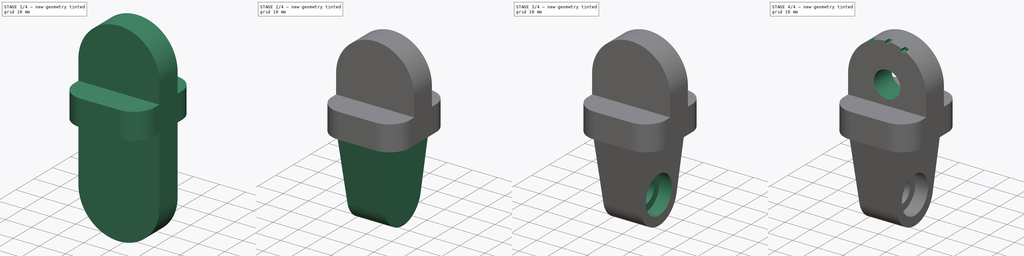
[diagram: build sequence overview — one tinted view per stage of 4, left to right]
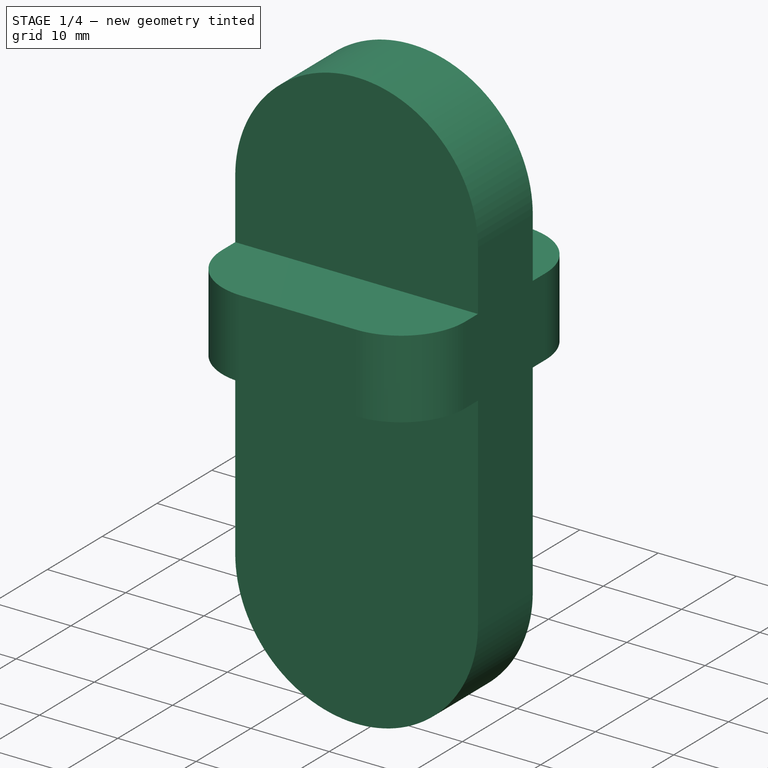
[diagram: stage 1 of 4 — iso view after this stage's code; geometry added in this stage tinted green]
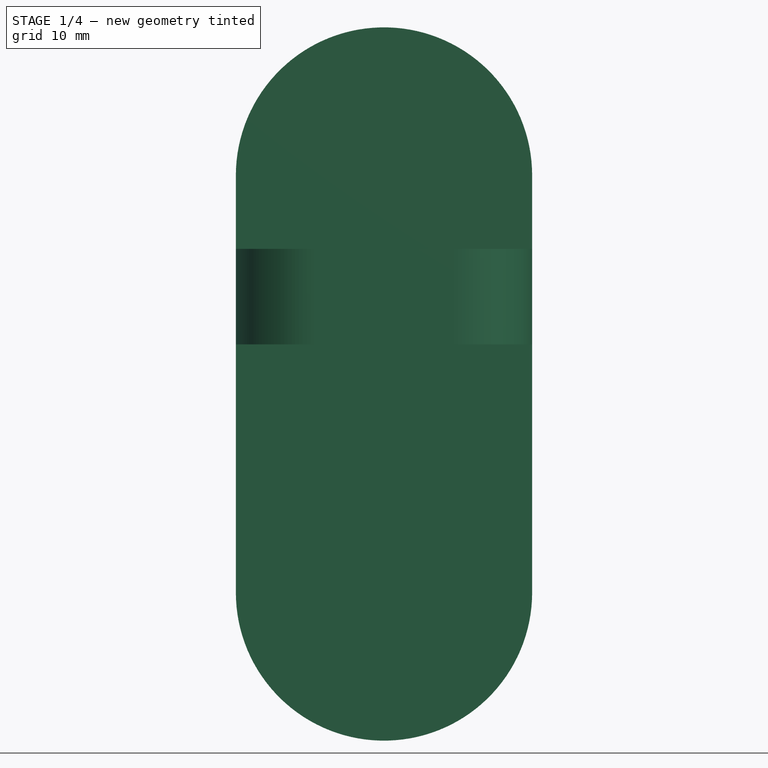
[diagram: stage 1 of 4 — front view after this stage's code; geometry added in this stage tinted green]
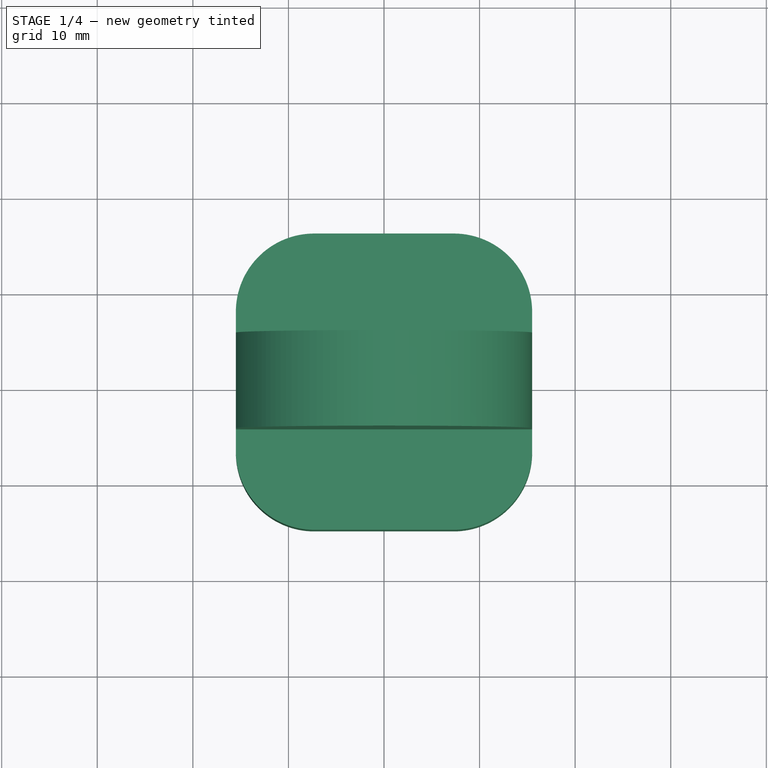
[diagram: stage 1 of 4 — top view after this stage's code; geometry added in this stage tinted green]
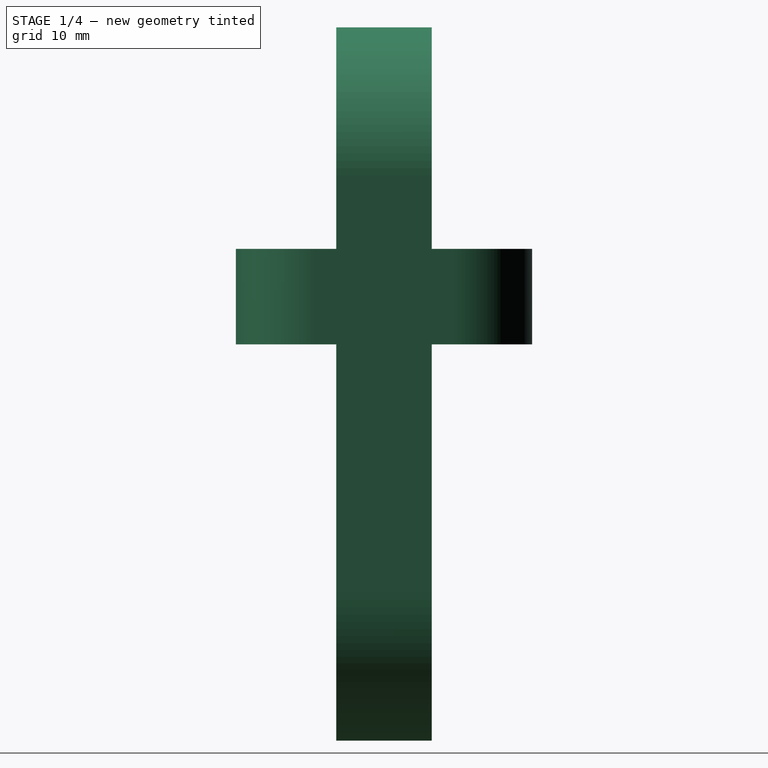
[diagram: stage 1 of 4 — right view after this stage's code; geometry added in this stage tinted green]
FCSTD DOCUMENT  (FreeCAD 0.21R33771 (Git))
Label: ex90
License: All rights reserved
LicenseURL: https://en.wikipedia.org/wiki/All_rights_reserved
objects: Sketcher::SketchObject×9, PartDesign::Pocket×6, PartDesign::Pad×3, PartDesign::Body×1
note: 28 computed .brp shape members not serialized (recipe doc carries the construction recipe); baked Part::Feature solids carry a one-line shape summary decoded from their .brp

FEATURE [Sketcher::SketchObject] Sketch
  FullyConstrained = false
  MapMode = 5
  Support = -> [XY_Plane]
  sketch-geometry (10):
    g0: ArcOfCircle CenterX=-7.30489 CenterY=7.30489 CenterZ=0 NormalX=0 NormalY=0 NormalZ=1 AngleXU=0 Radius=8.19511 StartAngle=1.5708 EndAngle=3.14159
    g1: LineSegment StartX=-7.30489 StartY=15.5 StartZ=0 EndX=7.30489 EndY=15.5 EndZ=0
    g2: ArcOfCircle CenterX=7.30489 CenterY=7.30489 CenterZ=0 NormalX=0 NormalY=0 NormalZ=1 AngleXU=0 Radius=8.19511 StartAngle=1e-16 EndAngle=1.5708
    g3: LineSegment StartX=15.5 StartY=7.30489 StartZ=0 EndX=15.5 EndY=-7.30489 EndZ=0
    g4: ArcOfCircle CenterX=7.30489 CenterY=-7.30489 CenterZ=0 NormalX=0 NormalY=0 NormalZ=1 AngleXU=0 Radius=8.19511 StartAngle=4.71239 EndAngle=6.28319
    g5: LineSegment StartX=7.30489 StartY=-15.5 StartZ=0 EndX=-7.30489 EndY=-15.5 EndZ=0
    g6: ArcOfCircle CenterX=-7.30489 CenterY=-7.30489 CenterZ=0 NormalX=0 NormalY=0 NormalZ=1 AngleXU=0 Radius=8.19511 StartAngle=3.14159 EndAngle=4.71239
    g7: LineSegment StartX=-15.5 StartY=-7.30489 StartZ=0 EndX=-15.5 EndY=7.30489 EndZ=0
    g8: GeomPoint X=-15.5 Y=15.5 Z=0
    g9: GeomPoint X=15.5 Y=-15.5 Z=0
  constraints (22):
    c: Tangent(g0,g1) = 1.5708
    c: Tangent(g1,g2) = 1.5708
    c: Tangent(g2,g3) = 1.5708
    c: Tangent(g3,g4) = 1.5708
    c: Tangent(g4,g5) = 1.5708
    c: Tangent(g5,g6) = 1.5708
    c: Tangent(g6,g7) = 1.5708
    c: Tangent(g7,g0) = 1.5708
    c: Horizontal(g1)
    c: Horizontal(g5)
    c: Vertical(g3)
    c: Vertical(g7)
    c: Equal(g0,g2)
    c: Equal(g2,g4)
    c: Equal(g4,g6)
    c: PointOnObject(g8,g1)
    c: PointOnObject(g8,g7)
    c: PointOnObject(g9,g3)
    c: PointOnObject(g9,g5)
    c: Symmetric(g0,g4,g-1)
    c: DistanceX(g0,g2) = 31
    c: DistanceY(g5,g0) = 31
FEATURE [PartDesign::Pad] Pad
  Direction = (0,0,1)
  Length = 10
  Length2 = 10
  Profile = -> Sketch
  ReferenceAxis = -> Sketch [N_Axis]
  Type = 0
FEATURE [Sketcher::SketchObject] Sketch001
  AttachmentOffset = pos=(0,0,-15.5) rot=(0,0,1;0rad)
  FullyConstrained = false
  MapMode = 5
  Placement = pos=(0,0,-3.4e-15) rot=(1,0,0;1.5708rad)
  Support = -> [Pad]
  sketch-geometry (4):
    g0: ArcOfCircle CenterX=0 CenterY=17.6751 CenterZ=0 NormalX=0 NormalY=0 NormalZ=1 AngleXU=0 Radius=15.5 StartAngle=2.4e-15 EndAngle=3.14159
    g1: ArcOfCircle CenterX=0 CenterY=-25.9553 CenterZ=0 NormalX=0 NormalY=0 NormalZ=1 AngleXU=0 Radius=15.5 StartAngle=3.14159 EndAngle=6.28319
    g2: LineSegment StartX=-15.5 StartY=17.6751 StartZ=0 EndX=-15.5 EndY=-25.9553 EndZ=0
    g3: LineSegment StartX=15.5 StartY=-25.9553 StartZ=0 EndX=15.5 EndY=17.6751 EndZ=0
  constraints (8):
    c: Tangent(g0,g2) = -1.5708
    c: Tangent(g2,g1) = -1.5708
    c: Tangent(g1,g3) = -1.5708
    c: Tangent(g3,g0) = -1.5708
    c: Equal(g0,g1)
    c: PointOnObject(g0,g-2)
    c: PointOnObject(g1,g-2)
    c: DistanceX(g0,g0) = 31
FEATURE [PartDesign::Pad] Pad001
  BaseFeature = -> Pad
  Direction = (0,-1,2e-16)
  Length = 10
  Length2 = 10
  Midplane = true
  Profile = -> Sketch001
  ReferenceAxis = -> Sketch001 [N_Axis]
  Type = 0
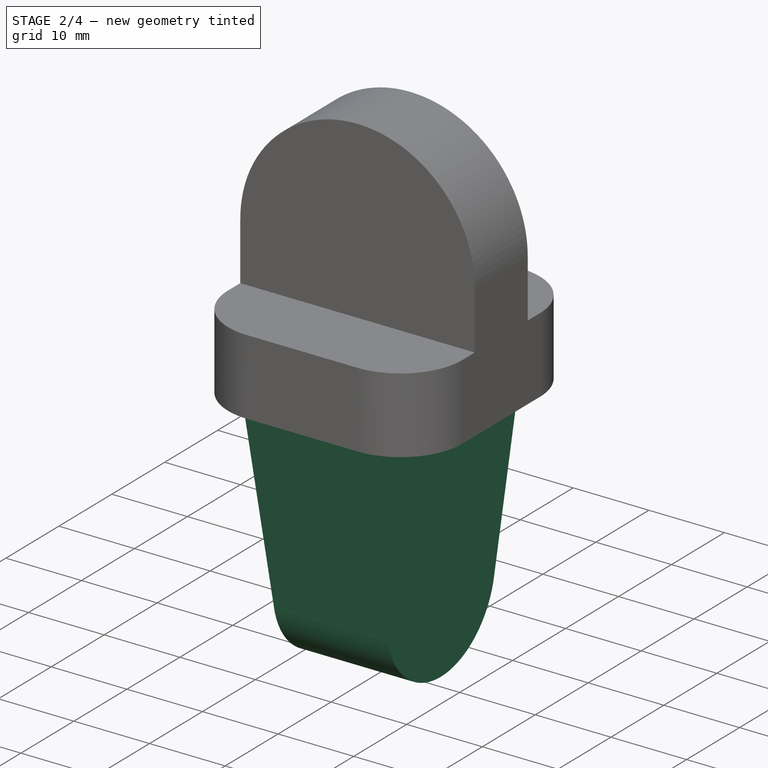
[diagram: stage 2 of 4 — iso view after this stage's code; geometry added in this stage tinted green]
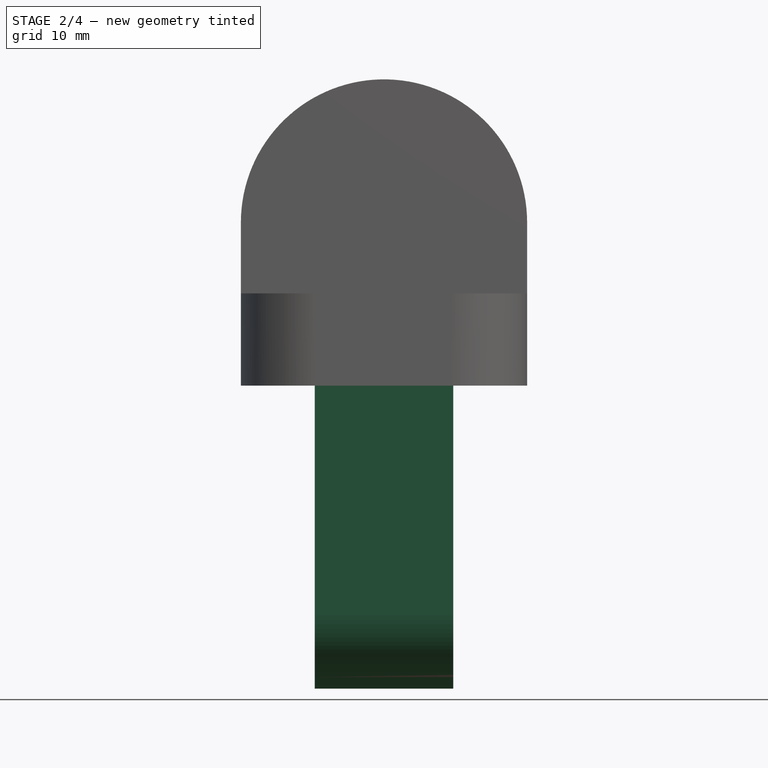
[diagram: stage 2 of 4 — front view after this stage's code; geometry added in this stage tinted green]
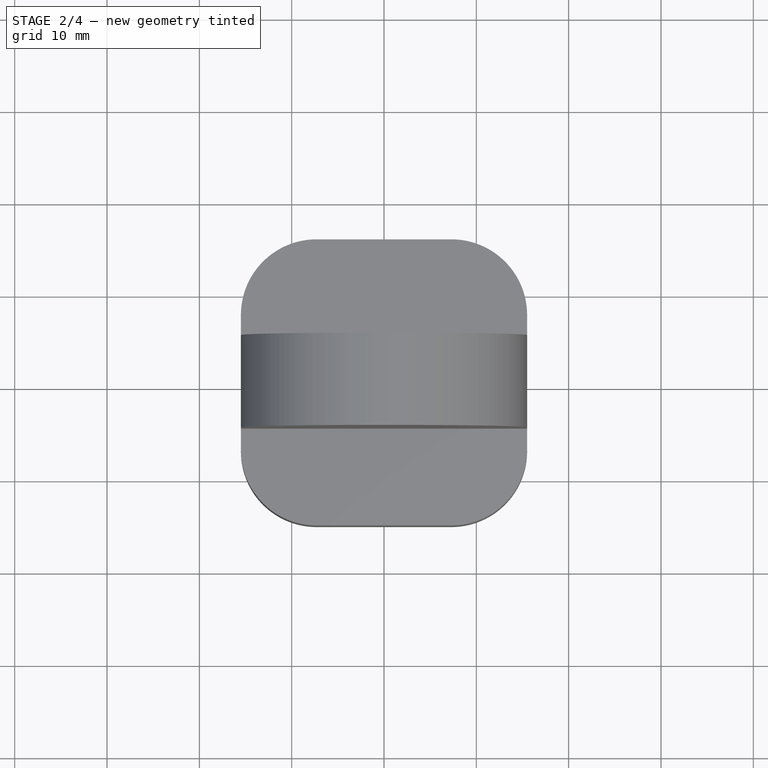
[diagram: stage 2 of 4 — top view after this stage's code; geometry added in this stage tinted green]
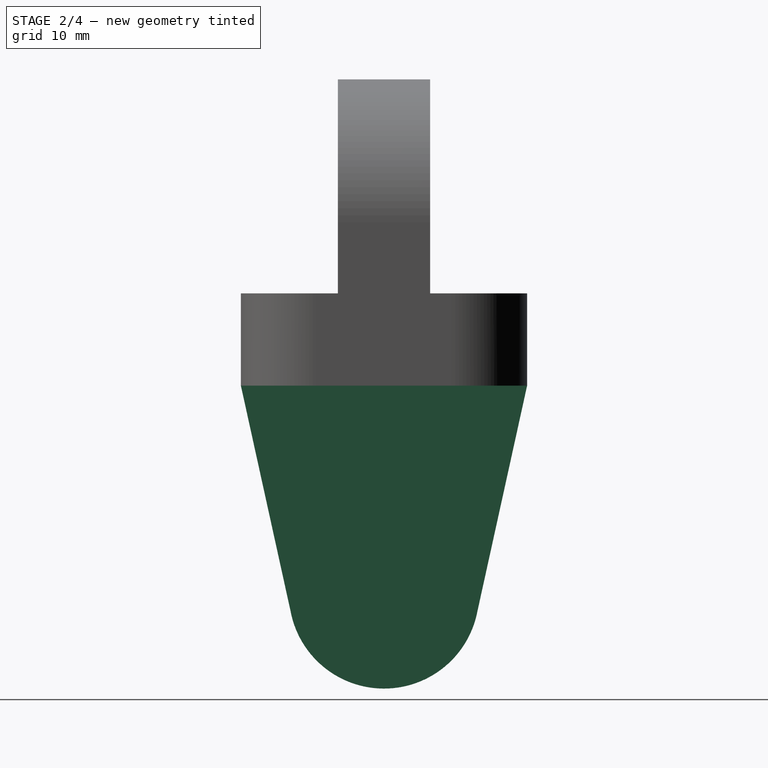
[diagram: stage 2 of 4 — right view after this stage's code; geometry added in this stage tinted green]
FEATURE [Sketcher::SketchObject] Sketch002
  FullyConstrained = false
  MapMode = 5
  Placement = pos=(0,0,0) rot=(1,0,0;1.5708rad)
  Support = -> [XZ_Plane]
  sketch-geometry (4):
    g0: LineSegment StartX=-30.1541 StartY=0 StartZ=0 EndX=30.1963 EndY=0 EndZ=0
    g1: LineSegment StartX=30.1963 StartY=0 StartZ=0 EndX=30.1963 EndY=-42.4417 EndZ=0
    g2: LineSegment StartX=30.1963 StartY=-42.4417 StartZ=0 EndX=-30.1541 EndY=-42.4417 EndZ=0
    g3: LineSegment StartX=-30.1541 StartY=-42.4417 StartZ=0 EndX=-30.1541 EndY=0 EndZ=0
  constraints (9):
    c: Coincident(g0,g1)
    c: Coincident(g1,g2)
    c: Coincident(g2,g3)
    c: Coincident(g3,g0)
    c: Horizontal(g0)
    c: Horizontal(g2)
    c: Vertical(g1)
    c: Vertical(g3)
    c: PointOnObject(g0,g-1)
FEATURE [PartDesign::Pocket] Pocket
  BaseFeature = -> Pad001
  Direction = (0,1,-2e-16)
  Length = 5
  Length2 = 5
  Midplane = true
  Profile = -> Sketch002
  ReferenceAxis = -> Sketch002 [N_Axis]
  Type = 1
FEATURE [Sketcher::SketchObject] Sketch003
  AttachmentOffset = pos=(0,0,-15.5) rot=(0,0,1;0rad)
  FullyConstrained = false
  MapMode = 5
  Placement = pos=(1.8e-15,0,0) rot=(0.57735,-0.57735,-0.57735;2.0944rad)
  Support = -> [Pocket]
  sketch-geometry (4):
    g0: ArcOfCircle CenterX=0 CenterY=-22.5112 CenterZ=0 NormalX=0 NormalY=0 NormalZ=1 AngleXU=0 Radius=10.2998 StartAngle=3.32464 EndAngle=6.10014
    g1: LineSegment StartX=15.5 StartY=0 StartZ=0 EndX=-15.5 EndY=0 EndZ=0
    g2: LineSegment StartX=-10.1278 StartY=-24.386 StartZ=0 EndX=-15.5 EndY=0 EndZ=0
    g3: LineSegment StartX=10.1278 StartY=-24.386 StartZ=0 EndX=15.5 EndY=0 EndZ=0
  constraints (7):
    c: PointOnObject(g0,g-2)
    c: Coincident(g1,g3)
    c: Coincident(g1,g2)
    c: DistanceX(g1,g1) = 31
    c: Symmetric(g1,g1,g-1)
    c: Coincident(g3,g0)
    c: Coincident(g2,g0)
FEATURE [PartDesign::Pad] Pad002
  BaseFeature = -> Pocket
  Direction = (-1,0,0)
  Length = 15
  Length2 = 10
  Midplane = true
  Profile = -> Sketch003
  ReferenceAxis = -> Sketch003 [N_Axis]
  Type = 0
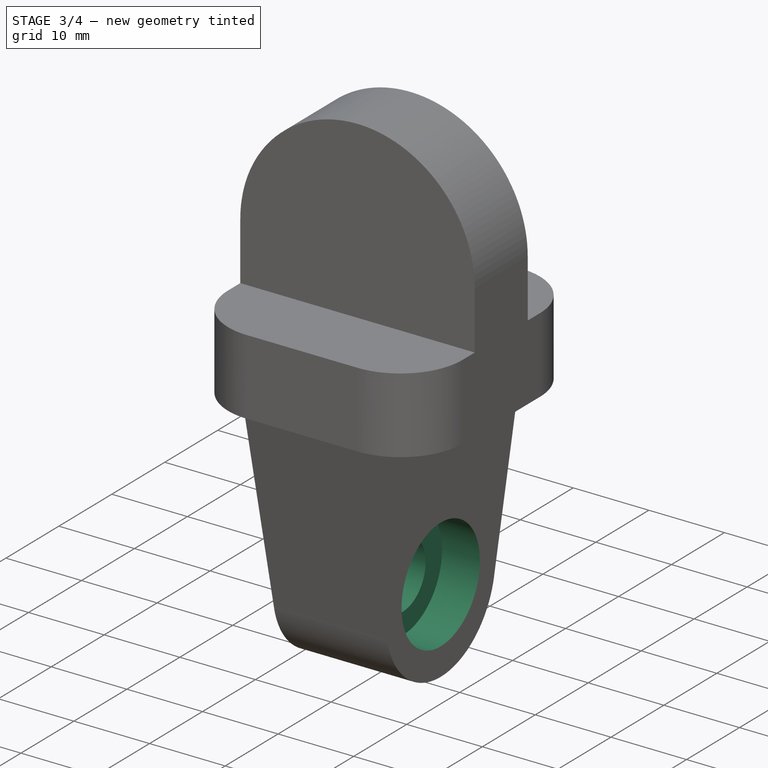
[diagram: stage 3 of 4 — iso view after this stage's code; geometry added in this stage tinted green]
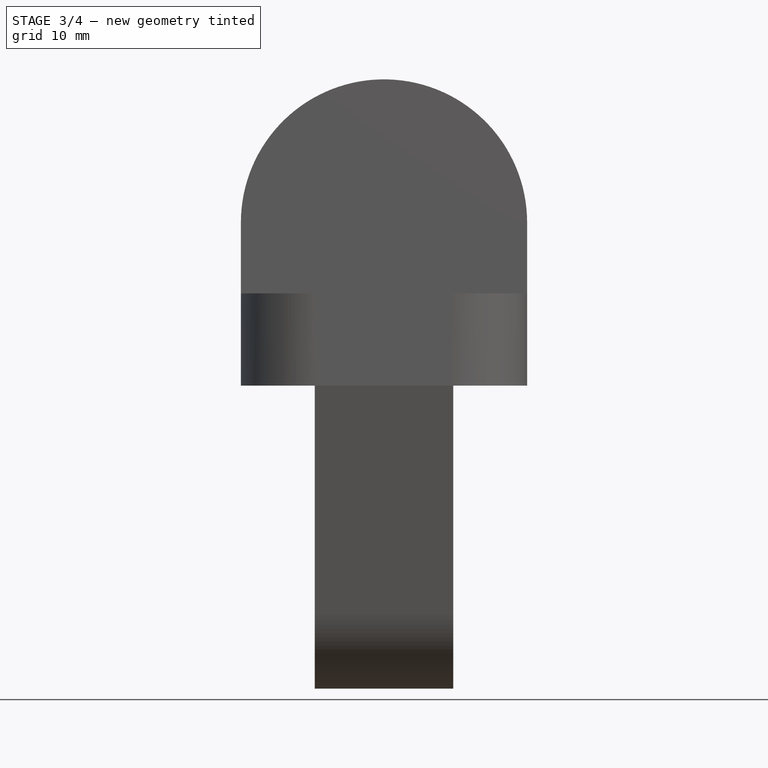
[diagram: stage 3 of 4 — front view after this stage's code; geometry added in this stage tinted green]
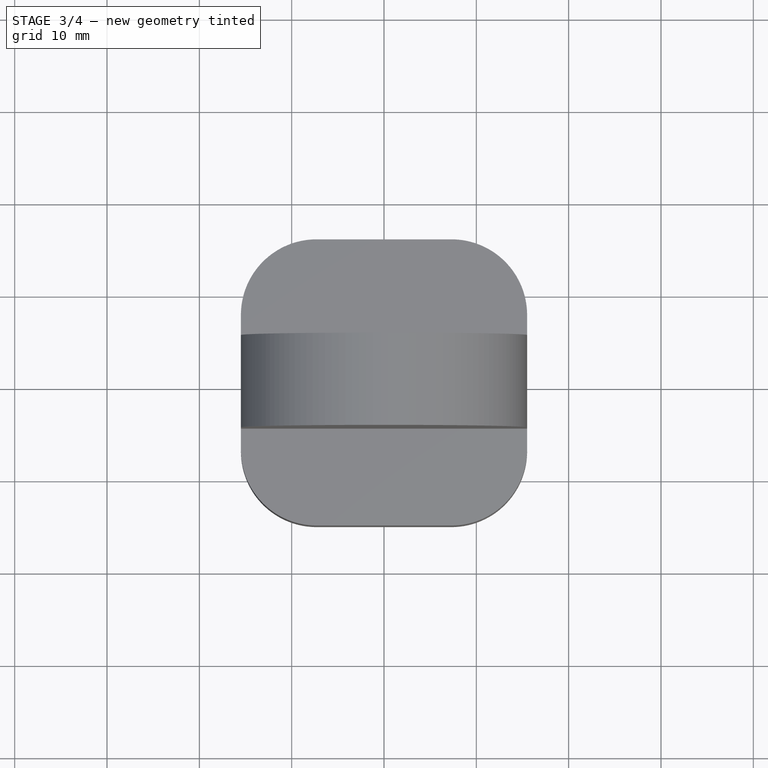
[diagram: stage 3 of 4 — top view after this stage's code; geometry added in this stage tinted green]
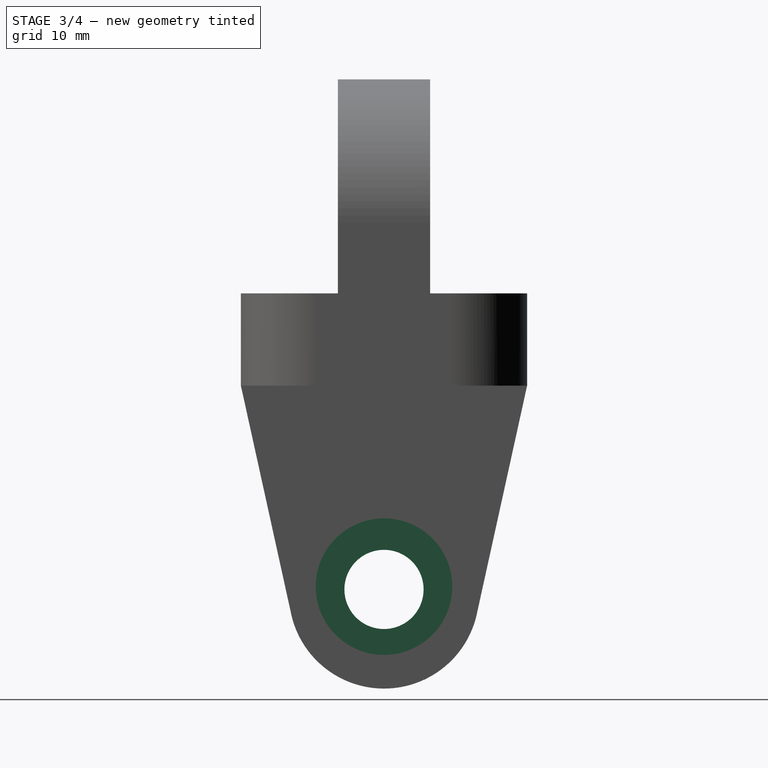
[diagram: stage 3 of 4 — right view after this stage's code; geometry added in this stage tinted green]
FEATURE [Sketcher::SketchObject] Sketch004
  FullyConstrained = false
  MapMode = 5
  Placement = pos=(-7.5,0,0) rot=(0.57735,-0.57735,-0.57735;2.0944rad)
  Support = -> [Pad002]
  sketch-geometry (1):
    g0: Circle CenterX=0 CenterY=-21.7673 CenterZ=0 NormalX=0 NormalY=0 NormalZ=1 AngleXU=0 Radius=7.39626
  constraints (1):
    c: PointOnObject(g0,g-2)
FEATURE [PartDesign::Pocket] Pocket001
  BaseFeature = -> Pad002
  Direction = (1,0,0)
  Length = 5
  Length2 = 5
  Profile = -> Sketch004
  ReferenceAxis = -> Sketch004 [N_Axis]
  Type = 0
FEATURE [Sketcher::SketchObject] Sketch005
  FullyConstrained = false
  MapMode = 5
  Placement = pos=(-2.5,0,0) rot=(0.57735,-0.57735,-0.57735;2.0944rad)
  Support = -> [Pocket001]
  sketch-geometry (1):
    g0: Circle CenterX=0 CenterY=-22.0703 CenterZ=0 NormalX=0 NormalY=0 NormalZ=1 AngleXU=0 Radius=4.28787
  constraints (1):
    c: PointOnObject(g0,g-2)
FEATURE [PartDesign::Pocket] Pocket002
  BaseFeature = -> Pocket001
  Direction = (1,0,0)
  Length = 5
  Length2 = 5
  Profile = -> Sketch005
  ReferenceAxis = -> Sketch005 [N_Axis]
  Type = 1
FEATURE [Sketcher::SketchObject] Sketch006
  AttachmentOffset = pos=(0,0,-15) rot=(0,0,1;0rad)
  FullyConstrained = false
  MapMode = 5
  Placement = pos=(7.5,0,0) rot=(0.57735,-0.57735,-0.57735;2.0944rad)
  Support = -> [Pad002]
  sketch-geometry (1):
    g0: Circle CenterX=0 CenterY=-21.7673 CenterZ=0 NormalX=0 NormalY=0 NormalZ=1 AngleXU=0 Radius=7.39626
  constraints (1):
    c: PointOnObject(g0,g-2)
FEATURE [PartDesign::Pocket] Pocket003
  BaseFeature = -> Pocket002
  Direction = (1,0,0)
  Length = 5
  Length2 = 5
  Profile = -> Sketch006
  ReferenceAxis = -> Sketch006 [N_Axis]
  Reversed = true
  Type = 0
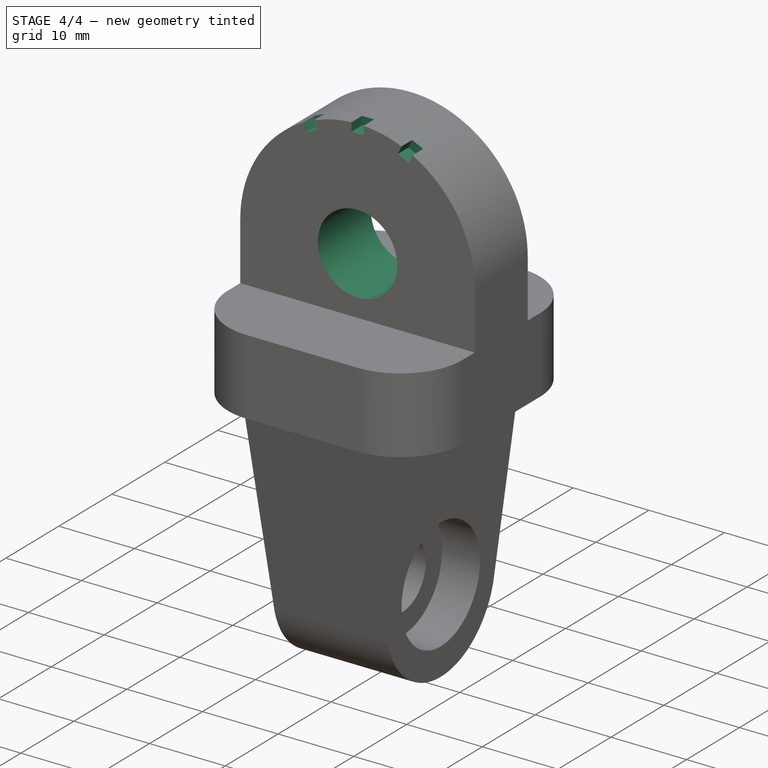
[diagram: stage 4 of 4 — iso view after this stage's code; geometry added in this stage tinted green]
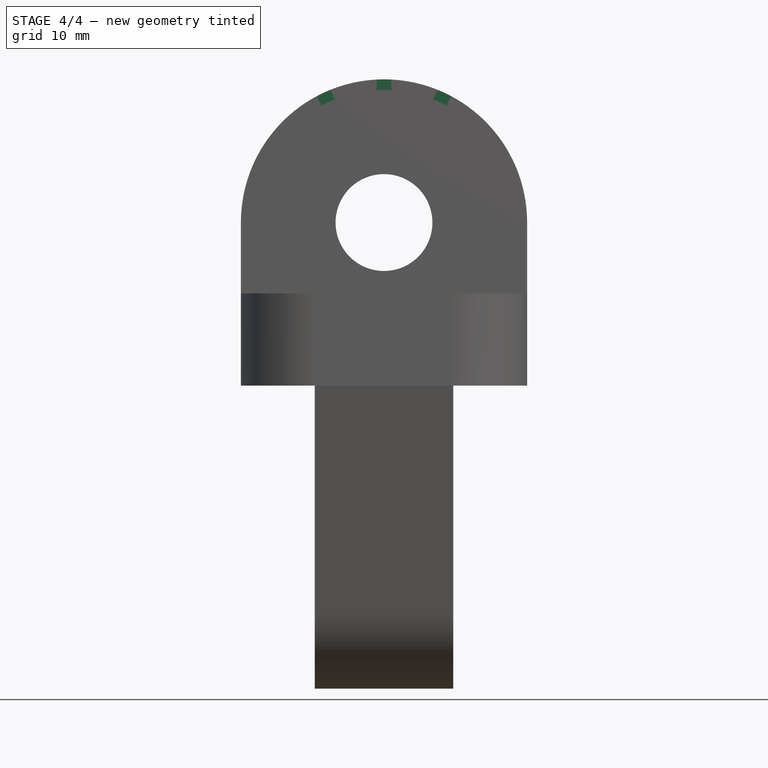
[diagram: stage 4 of 4 — front view after this stage's code; geometry added in this stage tinted green]
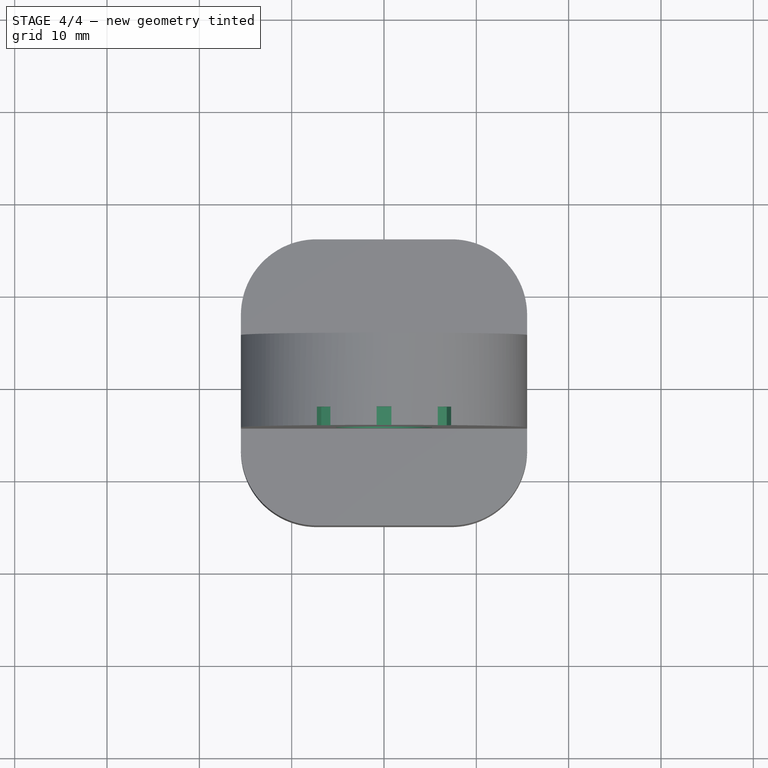
[diagram: stage 4 of 4 — top view after this stage's code; geometry added in this stage tinted green]
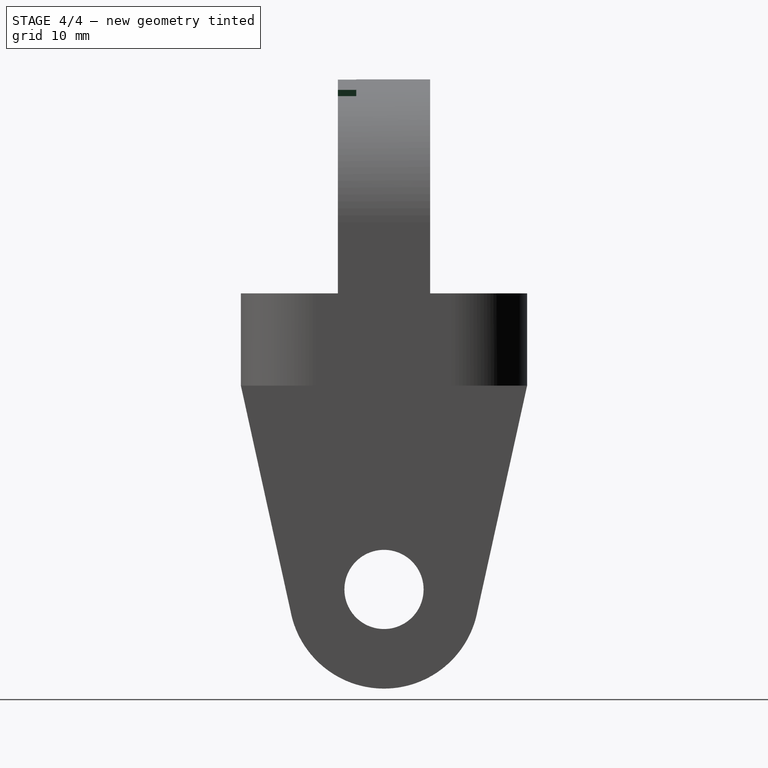
[diagram: stage 4 of 4 — right view after this stage's code; geometry added in this stage tinted green]
FEATURE [Sketcher::SketchObject] Sketch007
  FullyConstrained = false
  MapMode = 5
  Placement = pos=(0,-5,1.1e-15) rot=(1,0,0;1.5708rad)
  Support = -> [Pocket003]
  sketch-geometry (20):
    g0: LineSegment StartX=-0.002564 StartY=17.6674 StartZ=0 EndX=6.40542 EndY=31.4033 EndZ=0
    g1: LineSegment StartX=-0.002564 StartY=17.6674 StartZ=0 EndX=0 EndY=32.8245 EndZ=0
    g2: LineSegment StartX=-0.002564 StartY=17.6674 StartZ=0 EndX=-6.4059 EndY=31.4055 EndZ=0
    g3: LineSegment StartX=-6.79567 StartY=30.3352 StartZ=0 EndX=-5.33559 EndY=31.0157 EndZ=0
    g4: LineSegment StartX=-5.33559 StartY=31.0157 StartZ=0 EndX=-6.01613 EndY=32.4758 EndZ=0
    g5: LineSegment StartX=-6.01613 StartY=32.4758 StartZ=0 EndX=-7.47621 EndY=31.7953 EndZ=0
    g6: LineSegment StartX=-7.47621 StartY=31.7953 StartZ=0 EndX=-6.79567 EndY=30.3352 EndZ=0
    g7: Circle CenterX=-6.4059 CenterY=31.4055 CenterZ=0 NormalX=0 NormalY=0 NormalZ=1 AngleXU=0 Radius=1.13907
    g8: LineSegment StartX=0.805308 StartY=32.0189 StartZ=0 EndX=0.805581 EndY=33.6298 EndZ=0
    g9: LineSegment StartX=0.805581 StartY=33.6298 StartZ=0 EndX=-0.805308 EndY=33.6301 EndZ=0
    g10: LineSegment StartX=-0.805308 StartY=33.6301 StartZ=0 EndX=-0.805581 EndY=32.0192 EndZ=0
    g11: LineSegment StartX=-0.805581 StartY=32.0192 StartZ=0 EndX=0.805308 EndY=32.0189 EndZ=0
    g12: Circle CenterX=0 CenterY=32.8245 CenterZ=0 NormalX=0 NormalY=0 NormalZ=1 AngleXU=0 Radius=1.13907
    g13: LineSegment StartX=6.79482 StartY=30.3329 StartZ=0 EndX=7.47586 EndY=31.7927 EndZ=0
    g14: LineSegment StartX=7.47586 StartY=31.7927 StartZ=0 EndX=6.01601 EndY=32.4738 EndZ=0
    g15: LineSegment StartX=6.01601 StartY=32.4738 StartZ=0 EndX=5.33498 EndY=31.0139 EndZ=0
    g16: LineSegment StartX=5.33498 StartY=31.0139 StartZ=0 EndX=6.79482 EndY=30.3329 EndZ=0
    g17: Circle CenterX=6.40542 CenterY=31.4033 CenterZ=0 NormalX=0 NormalY=0 NormalZ=1 AngleXU=0 Radius=1.13907
    g18: Circle CenterX=-0.002564 CenterY=17.6674 CenterZ=0 NormalX=0 NormalY=0 NormalZ=1 AngleXU=0 Radius=5.24429
    g19: Circle CenterX=-0.002564 CenterY=17.6674 CenterZ=0 NormalX=0 NormalY=0 NormalZ=1 AngleXU=0 Radius=15.1571
  constraints (51):
    c: Coincident(g1,g0)
    c: PointOnObject(g1,g-2)
    c: Coincident(g2,g0)
    c: Angle(g1,g2) = 0.436332
    c: Angle(g0,g1) = 0.436332
    c: Coincident(g3,g4)
    c: Coincident(g4,g5)
    c: Coincident(g5,g6)
    c: Coincident(g6,g3)
    c: Equal(g3,g4)
    c: Equal(g3,g5)
    c: Equal(g3,g6)
    c: PointOnObject(g3,g7)
    c: PointOnObject(g4,g7)
    c: PointOnObject(g5,g7)
    c: PointOnObject(g6,g7)
    c: Coincident(g7,g2)
    c: Coincident(g8,g9)
    c: Coincident(g9,g10)
    c: Coincident(g10,g11)
    c: Coincident(g11,g8)
    c: Equal(g8,g9)
    c: Equal(g8,g10)
    c: Equal(g8,g11)
    c: PointOnObject(g8,g12)
    c: PointOnObject(g9,g12)
    c: PointOnObject(g10,g12)
    c: PointOnObject(g11,g12)
    c: Coincident(g12,g1)
    c: Coincident(g13,g14)
    c: Coincident(g14,g15)
    c: Coincident(g15,g16)
    c: Coincident(g16,g13)
    c: Equal(g13,g14)
    c: Equal(g13,g15)
    c: Equal(g13,g16)
    c: PointOnObject(g13,g17)
    c: PointOnObject(g14,g17)
    c: PointOnObject(g15,g17)
    c: PointOnObject(g16,g17)
    c: Coincident(g17,g0)
    c: Equal(g0,g2)
    c: Perpendicular(g2,g3)
    c: Perpendicular(g0,g16)
    c: Perpendicular(g1,g11)
    c: Equal(g3,g11)
    c: Equal(g11,g16)
    c: Coincident(g18,g0)
    c: Coincident(g19,g0)
    c: PointOnObject(g0,g19)
    c: PointOnObject(g1,g19)
FEATURE [PartDesign::Pocket] Pocket004
  BaseFeature = -> Pocket003
  Direction = (0,1,-2e-16)
  Length = 2
  Length2 = 5
  Profile = -> Sketch007
  ReferenceAxis = -> Sketch007 [N_Axis]
  Type = 0
FEATURE [Sketcher::SketchObject] Sketch008
  FullyConstrained = false
  MapMode = 5
  Placement = pos=(0,-5,1.1e-15) rot=(1,0,0;1.5708rad)
  Support = -> [Pocket003]
  sketch-geometry (20):
    g0: LineSegment StartX=-0.002564 StartY=17.6674 StartZ=0 EndX=6.40542 EndY=31.4033 EndZ=0
    g1: LineSegment StartX=-0.002564 StartY=17.6674 StartZ=0 EndX=0 EndY=32.8245 EndZ=0
    g2: LineSegment StartX=-0.002564 StartY=17.6674 StartZ=0 EndX=-6.4059 EndY=31.4055 EndZ=0
    g3: LineSegment StartX=-6.79567 StartY=30.3352 StartZ=0 EndX=-5.33559 EndY=31.0157 EndZ=0
    g4: LineSegment StartX=-5.33559 StartY=31.0157 StartZ=0 EndX=-6.01613 EndY=32.4758 EndZ=0
    g5: LineSegment StartX=-6.01613 StartY=32.4758 StartZ=0 EndX=-7.47621 EndY=31.7953 EndZ=0
    g6: LineSegment StartX=-7.47621 StartY=31.7953 StartZ=0 EndX=-6.79567 EndY=30.3352 EndZ=0
    g7: Circle CenterX=-6.4059 CenterY=31.4055 CenterZ=0 NormalX=0 NormalY=0 NormalZ=1 AngleXU=0 Radius=1.13907
    g8: LineSegment StartX=0.805308 StartY=32.0189 StartZ=0 EndX=0.805581 EndY=33.6298 EndZ=0
    g9: LineSegment StartX=0.805581 StartY=33.6298 StartZ=0 EndX=-0.805308 EndY=33.6301 EndZ=0
    g10: LineSegment StartX=-0.805308 StartY=33.6301 StartZ=0 EndX=-0.805581 EndY=32.0192 EndZ=0
    g11: LineSegment StartX=-0.805581 StartY=32.0192 StartZ=0 EndX=0.805308 EndY=32.0189 EndZ=0
    g12: Circle CenterX=0 CenterY=32.8245 CenterZ=0 NormalX=0 NormalY=0 NormalZ=1 AngleXU=0 Radius=1.13907
    g13: LineSegment StartX=6.79482 StartY=30.3329 StartZ=0 EndX=7.47586 EndY=31.7927 EndZ=0
    g14: LineSegment StartX=7.47586 StartY=31.7927 StartZ=0 EndX=6.01601 EndY=32.4738 EndZ=0
    g15: LineSegment StartX=6.01601 StartY=32.4738 StartZ=0 EndX=5.33498 EndY=31.0139 EndZ=0
    g16: LineSegment StartX=5.33498 StartY=31.0139 StartZ=0 EndX=6.79482 EndY=30.3329 EndZ=0
    g17: Circle CenterX=6.40542 CenterY=31.4033 CenterZ=0 NormalX=0 NormalY=0 NormalZ=1 AngleXU=0 Radius=1.13907
    g18: Circle CenterX=-0.002564 CenterY=17.6674 CenterZ=0 NormalX=0 NormalY=0 NormalZ=1 AngleXU=0 Radius=5.24429
    g19: Circle CenterX=-0.002564 CenterY=17.6674 CenterZ=0 NormalX=0 NormalY=0 NormalZ=1 AngleXU=0 Radius=15.1571
  constraints (51):
    c: Coincident(g1,g0)
    c: PointOnObject(g1,g-2)
    c: Coincident(g2,g0)
    c: Angle(g1,g2) = 0.436332
    c: Angle(g0,g1) = 0.436332
    c: Coincident(g3,g4)
    c: Coincident(g4,g5)
    c: Coincident(g5,g6)
    c: Coincident(g6,g3)
    c: Equal(g3,g4)
    c: Equal(g3,g5)
    c: Equal(g3,g6)
    c: PointOnObject(g3,g7)
    c: PointOnObject(g4,g7)
    c: PointOnObject(g5,g7)
    c: PointOnObject(g6,g7)
    c: Coincident(g7,g2)
    c: Coincident(g8,g9)
    c: Coincident(g9,g10)
    c: Coincident(g10,g11)
    c: Coincident(g11,g8)
    c: Equal(g8,g9)
    c: Equal(g8,g10)
    c: Equal(g8,g11)
    c: PointOnObject(g8,g12)
    c: PointOnObject(g9,g12)
    c: PointOnObject(g10,g12)
    c: PointOnObject(g11,g12)
    c: Coincident(g12,g1)
    c: Coincident(g13,g14)
    c: Coincident(g14,g15)
    c: Coincident(g15,g16)
    c: Coincident(g16,g13)
    c: Equal(g13,g14)
    c: Equal(g13,g15)
    c: Equal(g13,g16)
    c: PointOnObject(g13,g17)
    c: PointOnObject(g14,g17)
    c: PointOnObject(g15,g17)
    c: PointOnObject(g16,g17)
    c: Coincident(g17,g0)
    c: Equal(g0,g2)
    c: Perpendicular(g2,g3)
    c: Perpendicular(g0,g16)
    c: Perpendicular(g1,g11)
    c: Equal(g3,g11)
    c: Equal(g11,g16)
    c: Coincident(g18,g0)
    c: Coincident(g19,g0)
    c: PointOnObject(g0,g19)
    c: PointOnObject(g1,g19)
FEATURE [PartDesign::Pocket] Pocket005
  BaseFeature = -> Pocket004
  Direction = (0,1,-2e-16)
  Length = 18
  Length2 = 5
  Profile = -> Sketch008
  ReferenceAxis = -> Sketch008 [N_Axis]
  Type = 0
FEATURE [PartDesign::Body] Body
  Group = -> [Sketch,Pad,Sketch001,Pad001,Sketch002,Pocket,Sketch003,Pad002,Sketch004,Pocket001,Sketch005,Pocket002,Sketch006,Pocket003,Sketch007,Pocket004,Sketch008,Pocket005]
  Origin = -> Origin
  Tip = -> Pocket005
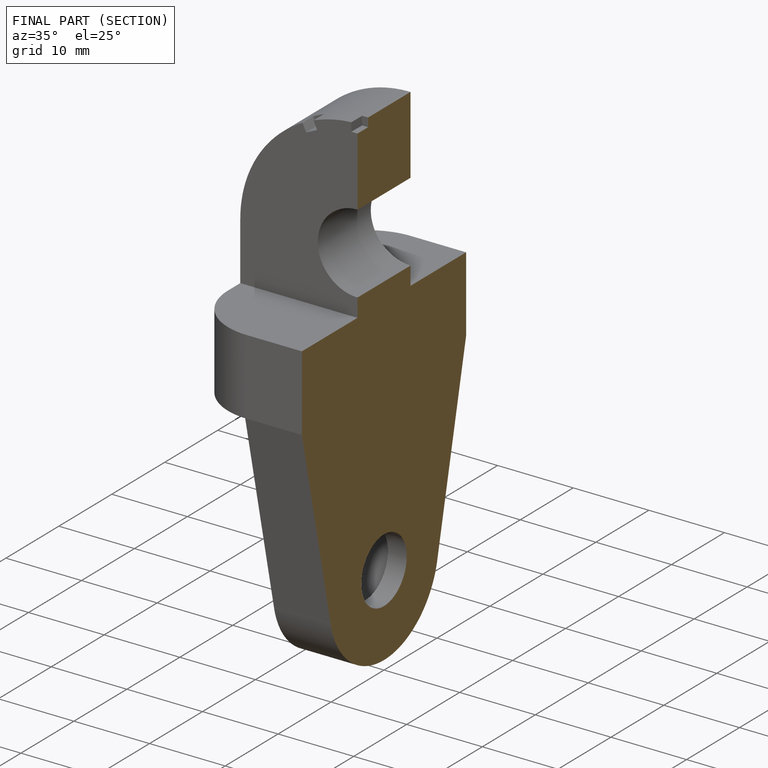
[diagram: finished part — half-section view (interior)]
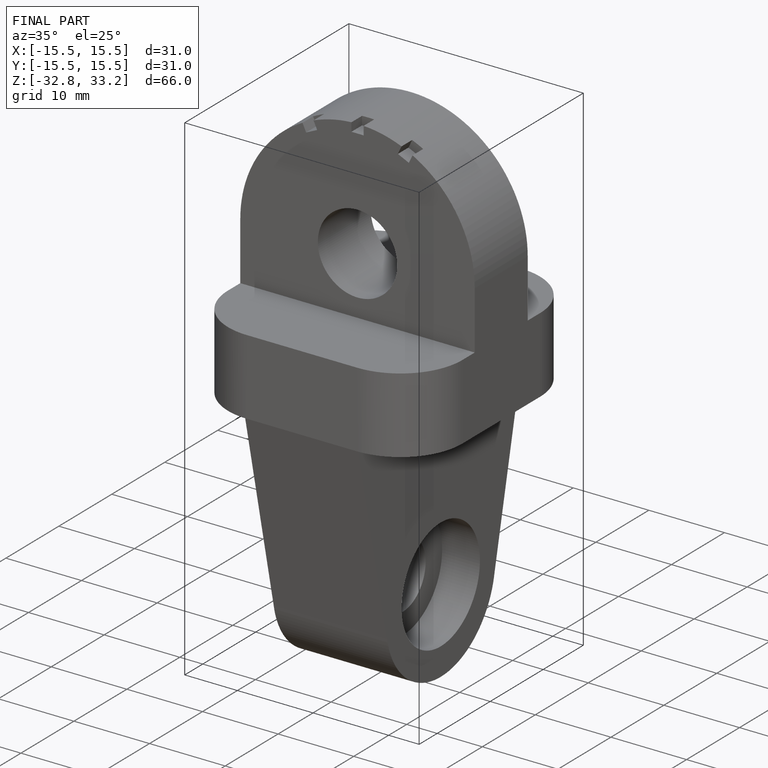
[diagram: finished part — iso view with bounding-box wireframe]
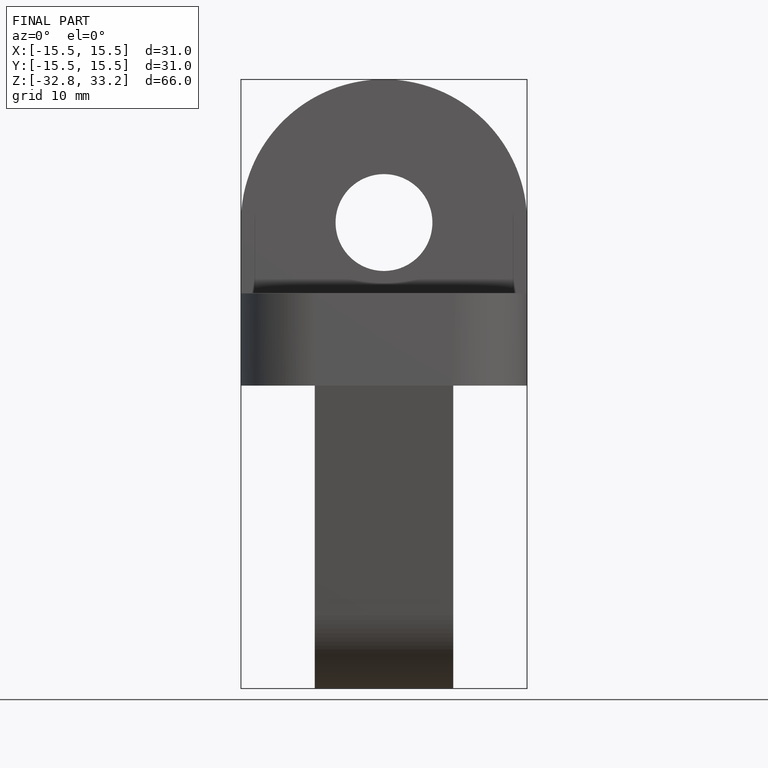
[diagram: finished part — front view with bounding-box wireframe]
